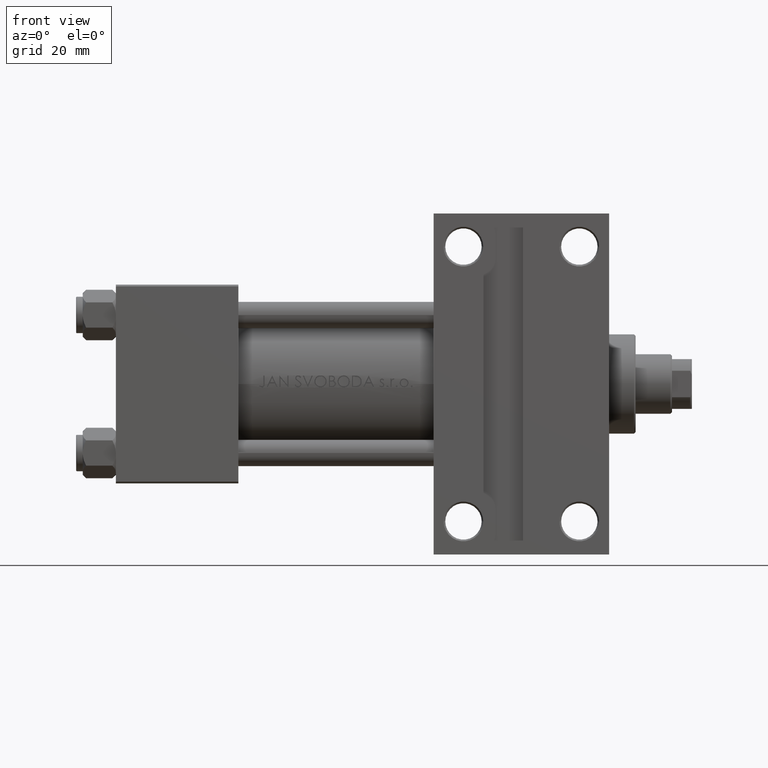
[diagram: clean part render]
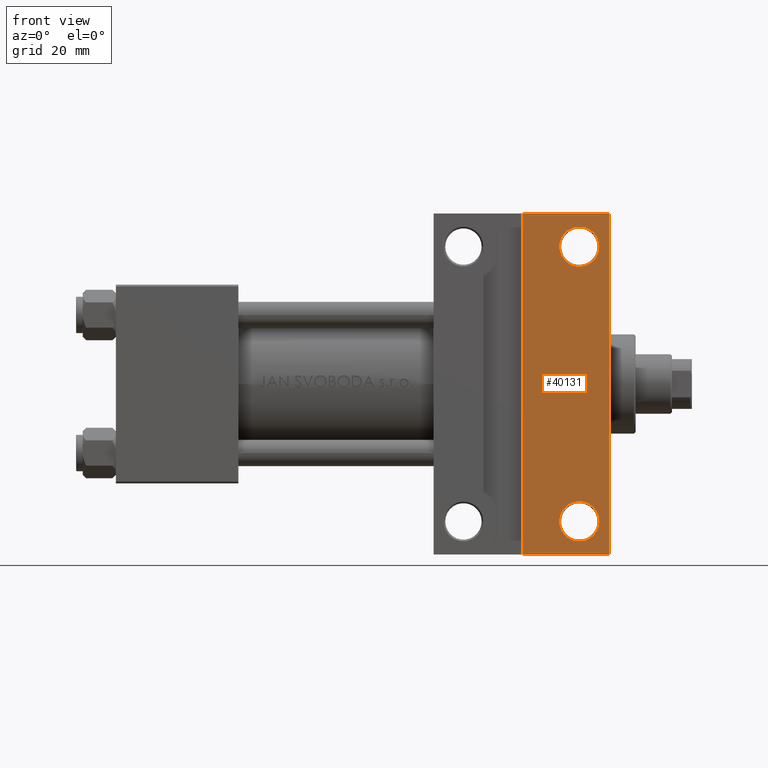
[diagram: same view with one face highlighted and labeled with its STEP entity id]
A machine part, front view. The second image highlights one B-rep face of the part: STEP entity #40131.
In plain terms, the highlighted planar face has unit normal (0, -1, -0).
Its self-contained STEP definition (entity closure, byte-faithful):
#306 = CARTESIAN_POINT ( 'NONE',  ( 134.0004999999999598, -41.50000000000000000, -30.00000000000000000 ) ) ;
#1288 = EDGE_CURVE ( 'NONE', #28456, #34348, #42282, .T. ) ;
#2008 = CARTESIAN_POINT ( 'NONE',  ( 95.99999999999998579, -51.50000000000000711, -29.99999999999999645 ) ) ;
#2016 = ORIENTED_EDGE ( 'NONE', *, *, #7381, .T. ) ;
#2872 = DIRECTION ( 'NONE',  ( 0.000000000000000000, 1.000000000000000000, 0.000000000000000000 ) ) ;
#2891 = LINE ( 'NONE', #14734, #40609 ) ;
#3384 = ORIENTED_EDGE ( 'NONE', *, *, #15092, .T. ) ;
#3654 = DIRECTION ( 'NONE',  ( 0.000000000000000000, 1.000000000000000000, 0.000000000000000000 ) ) ;
#3883 = ORIENTED_EDGE ( 'NONE', *, *, #27150, .F. ) ;
#4800 = DIRECTION ( 'NONE',  ( 1.000000000000000000, -2.618450529776313247E-16, 0.000000000000000000 ) ) ;
#5024 = ORIENTED_EDGE ( 'NONE', *, *, #6387, .T. ) ;
#5745 = DIRECTION ( 'NONE',  ( -0.000000000000000000, -1.000000000000000000, -0.000000000000000000 ) ) ;
#6387 = EDGE_CURVE ( 'NONE', #22146, #26499, #47694, .T. ) ;
#6468 = ORIENTED_EDGE ( 'NONE', *, *, #38249, .T. ) ;
#7381 = EDGE_CURVE ( 'NONE', #16351, #34743, #18020, .T. ) ;
#7939 = VERTEX_POINT ( 'NONE', #306 ) ;
#9652 = DIRECTION ( 'NONE',  ( 0.000000000000000000, 1.000000000000000000, 0.000000000000000000 ) ) ;
#9654 = DIRECTION ( 'NONE',  ( -1.000000000000000000, -0.000000000000000000, -0.000000000000000000 ) ) ;
#12869 = CARTESIAN_POINT ( 'NONE',  ( 139.9999999999999716, -41.50000000000000000, -30.00000000000000000 ) ) ;
#14734 = CARTESIAN_POINT ( 'NONE',  ( 149.0000000000000000, 30.00000000000000000, -29.99999999999999289 ) ) ;
#15092 = EDGE_CURVE ( 'NONE', #26499, #22146, #20087, .T. ) ;
#15936 = DIRECTION ( 'NONE',  ( 0.000000000000000000, 1.000000000000000000, 0.000000000000000000 ) ) ;
#15967 = CARTESIAN_POINT ( 'NONE',  ( 134.0004999999999882, 41.50000000000000000, -29.99999999999999289 ) ) ;
#16119 = CIRCLE ( 'NONE', #43655, 5.999499999999990507 ) ;
#16340 = DIRECTION ( 'NONE',  ( -0.000000000000000000, -1.156482317317871478E-16, 1.000000000000000000 ) ) ;
#16351 = VERTEX_POINT ( 'NONE', #39829 ) ;
#16412 = CARTESIAN_POINT ( 'NONE',  ( 96.00000000000000000, 51.50000000000000711, -29.99999999999999645 ) ) ;
#16688 = ORIENTED_EDGE ( 'NONE', *, *, #17863, .T. ) ;
#17863 = EDGE_CURVE ( 'NONE', #7939, #30124, #16119, .T. ) ;
#17926 = CARTESIAN_POINT ( 'NONE',  ( 139.9999999999999716, 41.50000000000000000, -29.99999999999999289 ) ) ;
#18020 = LINE ( 'NONE', #2008, #36705 ) ;
#18423 = DIRECTION ( 'NONE',  ( 0.000000000000000000, -1.000000000000000000, -1.156482317317871478E-16 ) ) ;
#20087 = CIRCLE ( 'NONE', #27978, 5.999499999999962974 ) ;
#21458 = CARTESIAN_POINT ( 'NONE',  ( 123.0000000000000000, 51.50000000000000711, -29.99999999999999645 ) ) ;
#22146 = VERTEX_POINT ( 'NONE', #15967 ) ;
#22414 = CARTESIAN_POINT ( 'NONE',  ( 145.9994999999999266, 41.50000000000000000, -29.99999999999999289 ) ) ;
#24584 = DIRECTION ( 'NONE',  ( -0.000000000000000000, -1.156482317317871478E-16, 1.000000000000000000 ) ) ;
#24620 = ORIENTED_EDGE ( 'NONE', *, *, #1288, .T. ) ;
#26328 = FACE_BOUND ( 'NONE', #48541, .T. ) ;
#26499 = VERTEX_POINT ( 'NONE', #22414 ) ;
#26636 = CARTESIAN_POINT ( 'NONE',  ( 123.0000000000000000, -51.50000000000000000, -29.99999999999999645 ) ) ;
#27150 = EDGE_CURVE ( 'NONE', #28456, #34743, #28432, .T. ) ;
#27279 = AXIS2_PLACEMENT_3D ( 'NONE', #33011, #48753, #45060 ) ;
#27978 = AXIS2_PLACEMENT_3D ( 'NONE', #17926, #24584, #2872 ) ;
#28432 = LINE ( 'NONE', #28665, #45702 ) ;
#28456 = VERTEX_POINT ( 'NONE', #21458 ) ;
#28665 = CARTESIAN_POINT ( 'NONE',  ( 123.0000000000000000, -51.50000000000000000, -29.99999999999999645 ) ) ;
#29884 = EDGE_LOOP ( 'NONE', ( #3883, #24620, #6468, #2016 ) ) ;
#30124 = VERTEX_POINT ( 'NONE', #30957 ) ;
#30957 = CARTESIAN_POINT ( 'NONE',  ( 145.9994999999999550, -41.50000000000000000, -30.00000000000000000 ) ) ;
#32129 = CIRCLE ( 'NONE', #41528, 5.999499999999990507 ) ;
#32776 = CARTESIAN_POINT ( 'NONE',  ( 139.9999999999999716, 41.50000000000000000, -29.99999999999999289 ) ) ;
#33011 = CARTESIAN_POINT ( 'NONE',  ( 149.0000000000000000, 30.00000000000000000, -29.99999999999999289 ) ) ;
#34348 = VERTEX_POINT ( 'NONE', #40271 ) ;
#34743 = VERTEX_POINT ( 'NONE', #26636 ) ;
#36705 = VECTOR ( 'NONE', #9654, 1000.000000000000000 ) ;
#38249 = EDGE_CURVE ( 'NONE', #34348, #16351, #2891, .T. ) ;
#39829 = CARTESIAN_POINT ( 'NONE',  ( 149.0000000000000000, -51.50000000000000711, -29.99999999999999645 ) ) ;
#39884 = AXIS2_PLACEMENT_3D ( 'NONE', #32776, #47783, #3654 ) ;
#40131 = ADVANCED_FACE ( 'NONE', ( #40390, #26328, #48014 ), #47777, .T. ) ;
#40271 = CARTESIAN_POINT ( 'NONE',  ( 149.0000000000000000, 51.49999999999999289, -29.99999999999999645 ) ) ;
#40390 = FACE_OUTER_BOUND ( 'NONE', #29884, .T. ) ;
#40609 = VECTOR ( 'NONE', #18423, 1000.000000000000000 ) ;
#41528 = AXIS2_PLACEMENT_3D ( 'NONE', #45746, #46243, #15936 ) ;
#41555 = EDGE_CURVE ( 'NONE', #30124, #7939, #32129, .T. ) ;
#42219 = EDGE_LOOP ( 'NONE', ( #5024, #3384 ) ) ;
#42282 = LINE ( 'NONE', #16412, #44398 ) ;
#43655 = AXIS2_PLACEMENT_3D ( 'NONE', #12869, #16340, #9652 ) ;
#44398 = VECTOR ( 'NONE', #4800, 1000.000000000000000 ) ;
#45060 = DIRECTION ( 'NONE',  ( 0.000000000000000000, 1.000000000000000000, 1.156482317317871478E-16 ) ) ;
#45702 = VECTOR ( 'NONE', #5745, 1000.000000000000000 ) ;
#45746 = CARTESIAN_POINT ( 'NONE',  ( 139.9999999999999716, -41.50000000000000000, -30.00000000000000000 ) ) ;
#46243 = DIRECTION ( 'NONE',  ( -0.000000000000000000, -1.156482317317871478E-16, 1.000000000000000000 ) ) ;
#47694 = CIRCLE ( 'NONE', #39884, 5.999499999999962974 ) ;
#47777 = PLANE ( 'NONE',  #27279 ) ;
#47783 = DIRECTION ( 'NONE',  ( -0.000000000000000000, -1.156482317317871478E-16, 1.000000000000000000 ) ) ;
#48014 = FACE_BOUND ( 'NONE', #42219, .T. ) ;
#48425 = ORIENTED_EDGE ( 'NONE', *, *, #41555, .T. ) ;
#48541 = EDGE_LOOP ( 'NONE', ( #16688, #48425 ) ) ;
#48753 = DIRECTION ( 'NONE',  ( 0.000000000000000000, 1.156482317317871478E-16, -1.000000000000000000 ) ) ;